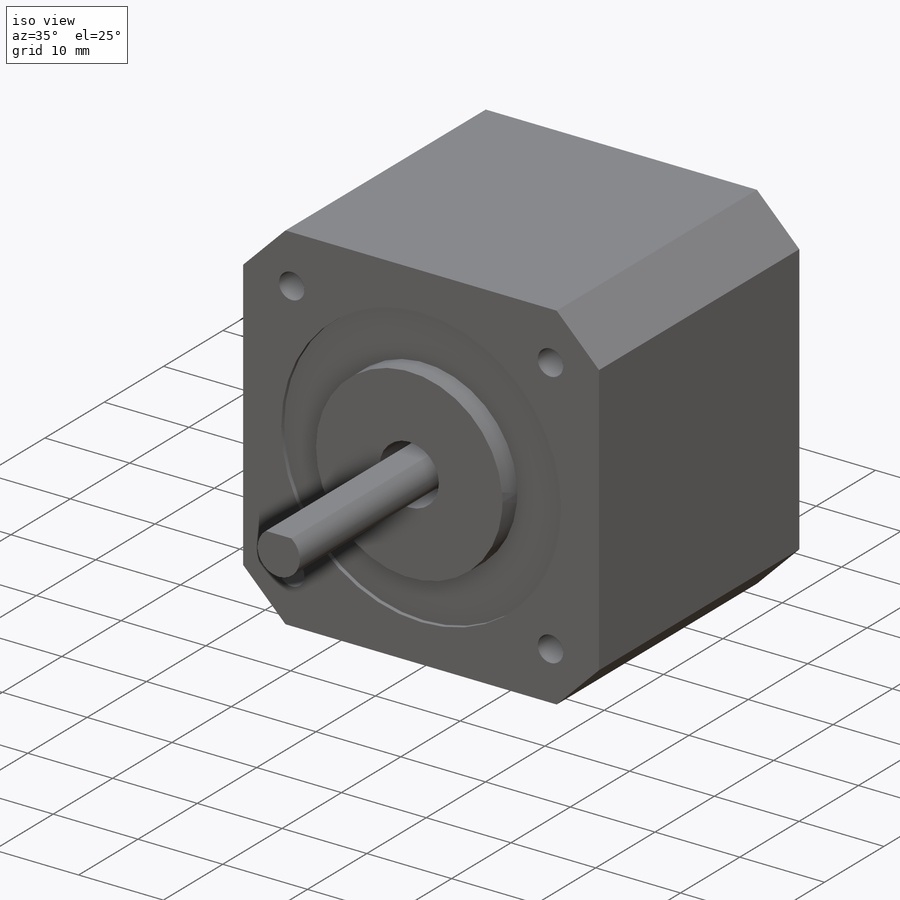
[diagram: iso view]
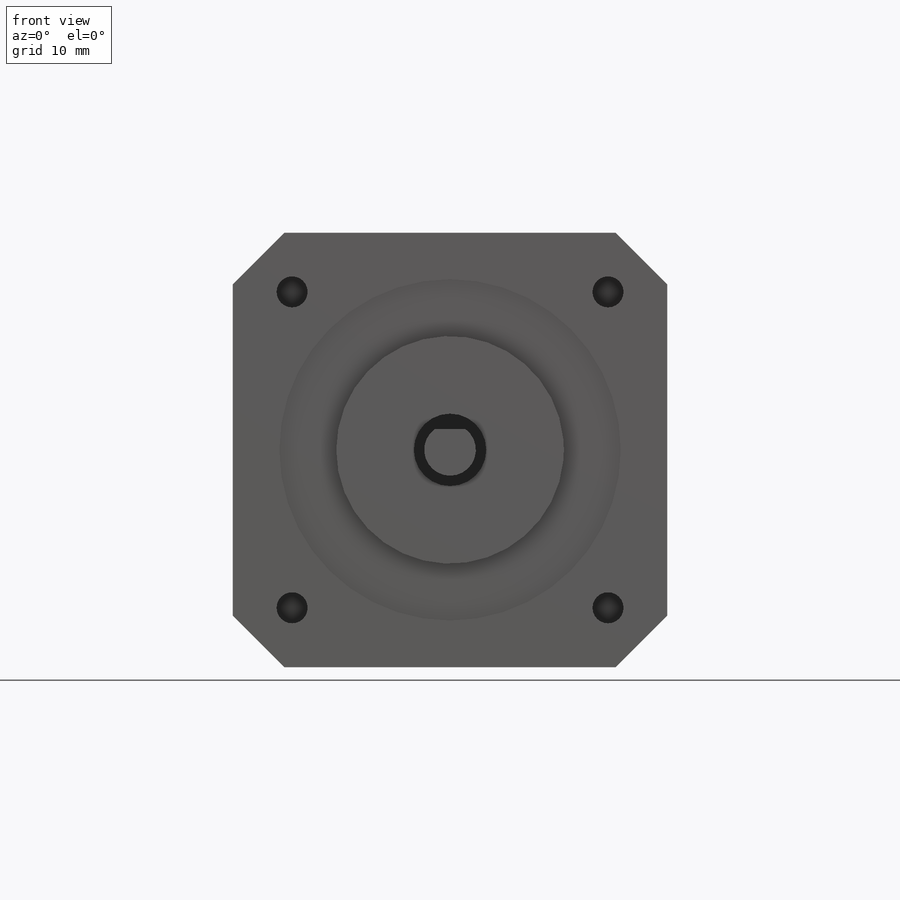
[diagram: front view]
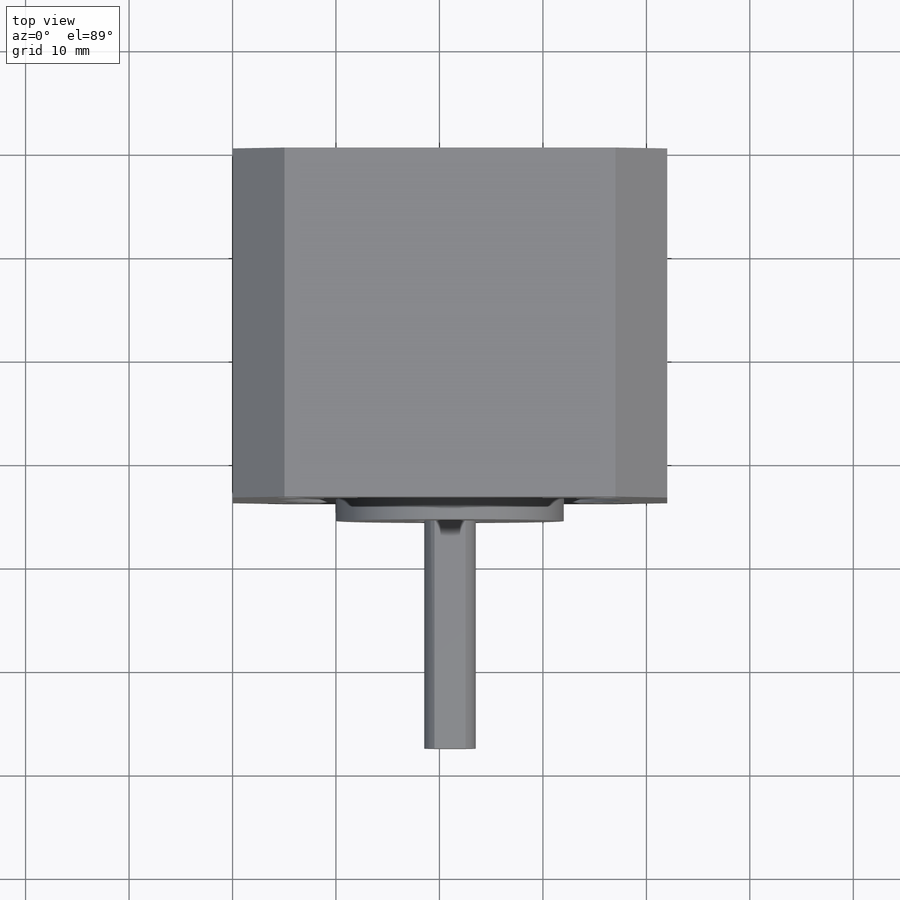
[diagram: top view]
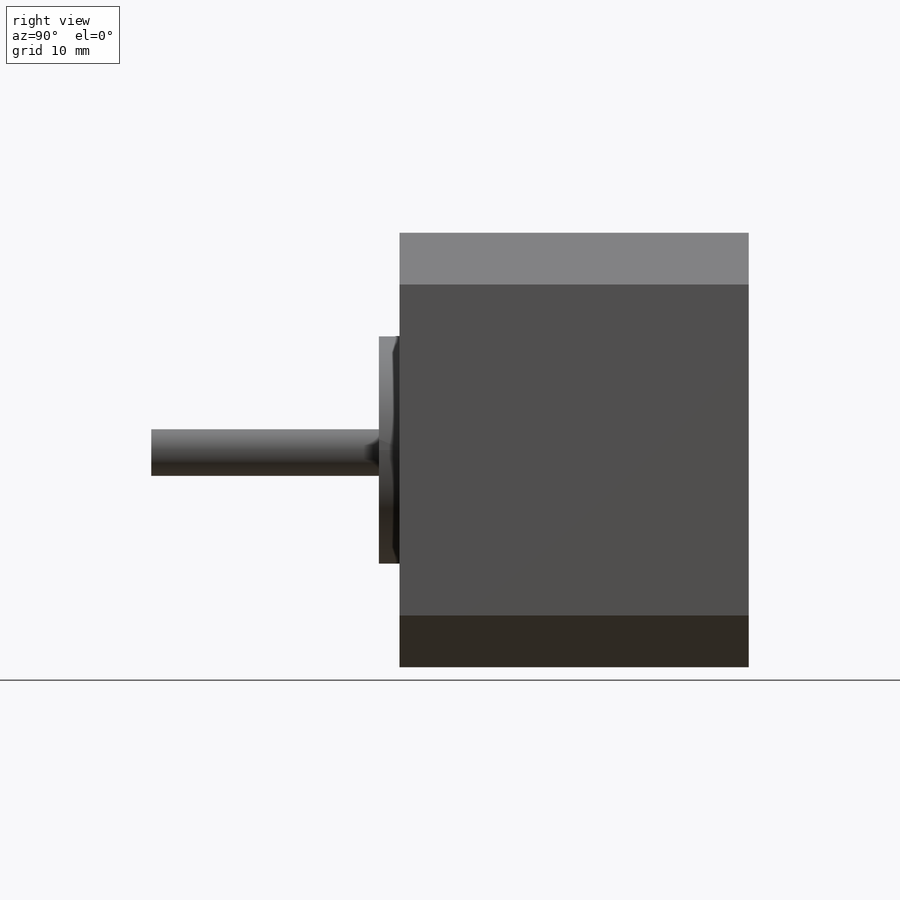
[diagram: right view]
SOLIDWORKS PART (.sldprt)
format: sldprt  version: not decoded by parser v0  size: 238,080 bytes
history: native  units: mm
features: sketch x6, extrude x3, cut_extrude x3, material x1, plane x1, mirror x1 (+13 scaffold rows collapsed)
feature tree (28):
  scaffold x13  (default folders/planes/origin — collapsed)
  material  "Material <not specified>"
  sketch  "Sketch1"  dims[D1=42.0mm D2=42.0mm]
  extrude  "Boss-Extrude1"  Depth=33.75mm
  sketch  "Sketch2"  dims[c1.D1=33.0mm c1.D2=33.0mm c1.D3=33.0mm c2.D2=21.0mm c2.D3=21.0mm]
  cut_extrude  "Cut-Extrude1"  Depth=0.5mm
  sketch  "Sketch3"  dims[D1=22.0mm]
  extrude  "Boss-Extrude2"  Depth=2.5mm
  sketch  "Sketch4"  dims[D1=7.0mm]
  cut_extrude  "Cut-Extrude2"  Depth=5mm
  sketch  "Sketch5"  dims[D1=5.0mm D2=3.0mm]
  extrude  "Boss-Extrude3"  Depth=27mm
  sketch  "Sketch6"  dims[c1.D1=43.18mm c1.D2=3.0mm c1.D3=3.0mm c1.D4=3.0mm c1.D5=3.0mm c1.D6=43.18mm c2.D1=43.18mm c2.D6=~30.532871mm c3.D1=31.0mm]
  cut_extrude  "Cut-Extrude3"  Depth=5mm
  plane  "Plane1"
  mirror  "Mirror1"
decode coverage: 12 of 13 modeling features carry decoded parameters
note: ~ marks probable driven/reference dimensions
note: suppression state not decoded; provenance and decode notes live in map.json
